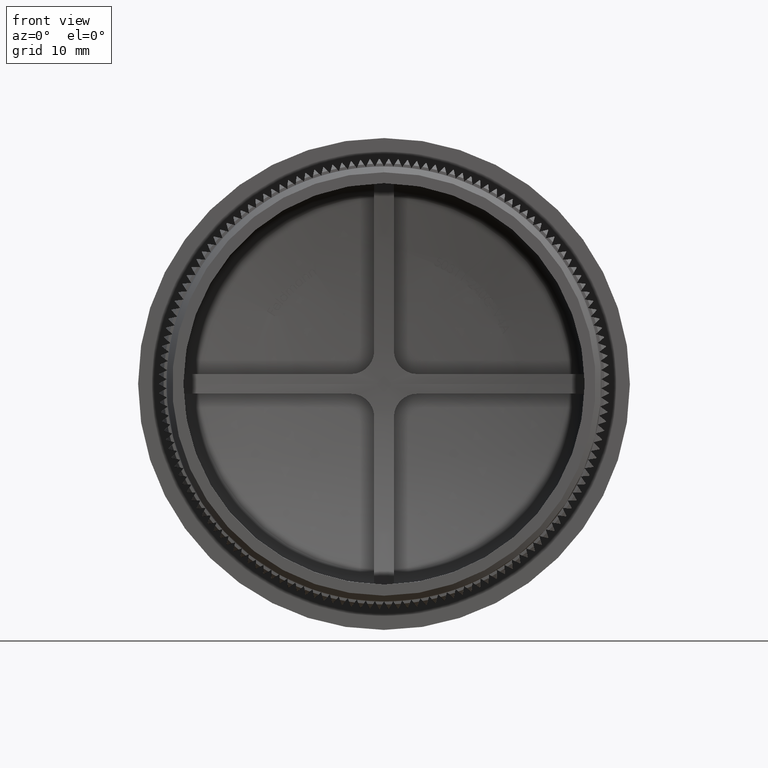
[diagram: clean part render]
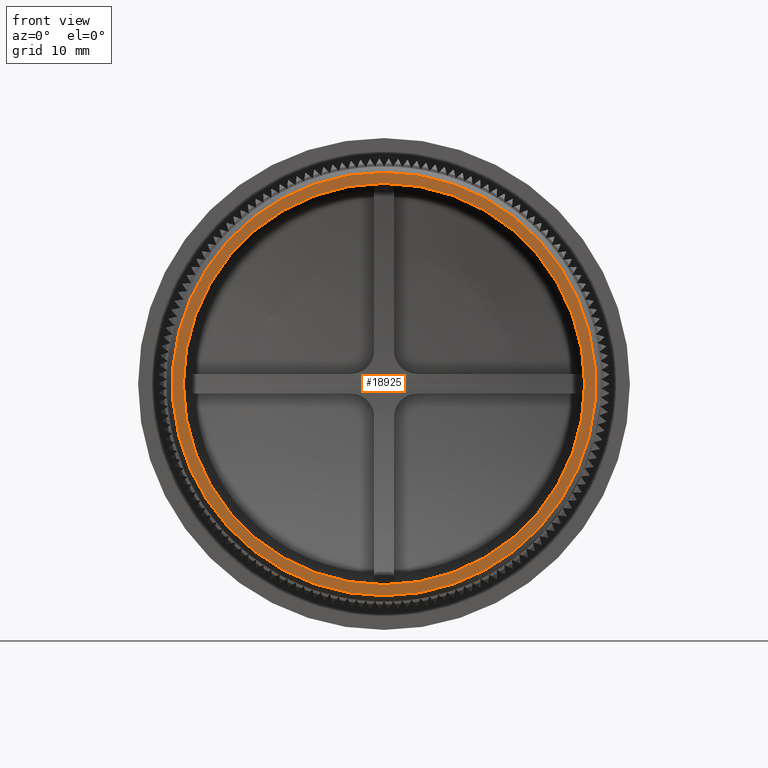
[diagram: same view with one face highlighted and labeled with its STEP entity id]
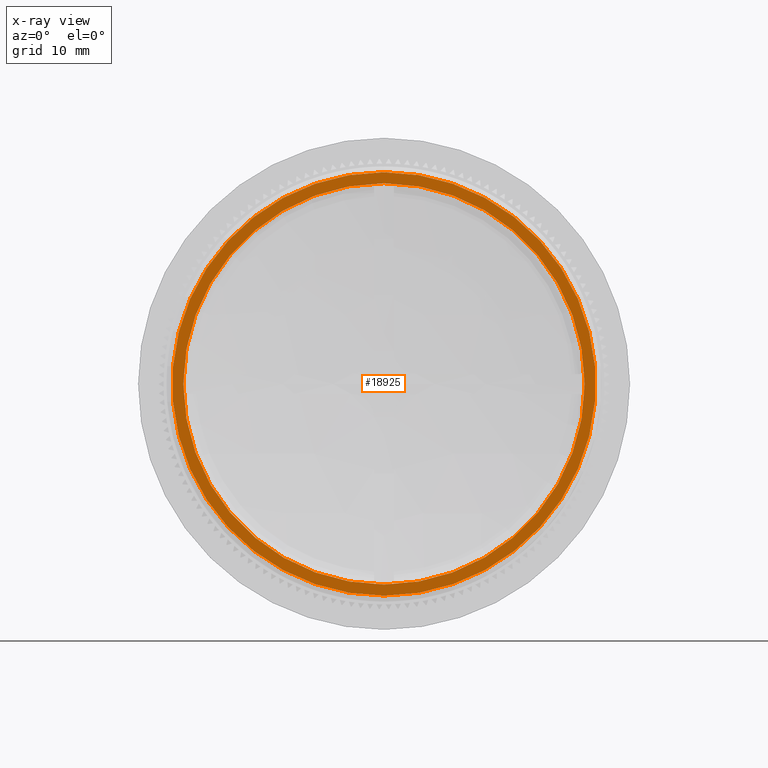
[diagram: x-ray of the same camera — body ghosted, the highlighted face saturated]
A machine part, front view. The second image highlights one B-rep face of the part: STEP entity #18925.
The next image is the same camera in x-ray: the body ghosted, the highlighted face saturated — about 0% of this face is hidden behind the body in this view.
In plain terms, the highlighted planar face has unit normal (0, -1, -0).
Its self-contained STEP definition (entity closure, byte-faithful):
#38 = ORIENTED_EDGE ( 'NONE', *, *, #5437, .F. ) ;
#264 = FACE_OUTER_BOUND ( 'NONE', #23114, .T. ) ;
#1647 = CIRCLE ( 'NONE', #35241, 17.30000000000000100 ) ;
#3234 = AXIS2_PLACEMENT_3D ( 'NONE', #32918, #12214, #15675 ) ;
#3428 = CARTESIAN_POINT ( 'NONE',  ( 0.0000000000000000000, 0.0000000000000000000, 18.24999999999998900 ) ) ;
#4603 = ORIENTED_EDGE ( 'NONE', *, *, #5358, .T. ) ;
#4652 = AXIS2_PLACEMENT_3D ( 'NONE', #18503, #29569, #6198 ) ;
#5358 = EDGE_CURVE ( 'NONE', #12054, #29857, #14116, .T. ) ;
#5437 = EDGE_CURVE ( 'NONE', #5749, #7110, #1647, .T. ) ;
#5749 = VERTEX_POINT ( 'NONE', #28365 ) ;
#6198 = DIRECTION ( 'NONE',  ( 0.0000000000000000000, 0.0000000000000000000, -1.000000000000000000 ) ) ;
#6914 = AXIS2_PLACEMENT_3D ( 'NONE', #19746, #36873, #26906 ) ;
#7110 = VERTEX_POINT ( 'NONE', #37988 ) ;
#9110 = AXIS2_PLACEMENT_3D ( 'NONE', #26113, #25517, #19279 ) ;
#12054 = VERTEX_POINT ( 'NONE', #3428 ) ;
#12214 = DIRECTION ( 'NONE',  ( 0.0000000000000000000, -1.000000000000000000, -0.0000000000000000000 ) ) ;
#13572 = EDGE_LOOP ( 'NONE', ( #38, #41578 ) ) ;
#14116 = CIRCLE ( 'NONE', #9110, 18.24999999999998900 ) ;
#15675 = DIRECTION ( 'NONE',  ( 0.0000000000000000000, 0.0000000000000000000, -1.000000000000000000 ) ) ;
#17025 = EDGE_CURVE ( 'NONE', #7110, #5749, #19265, .T. ) ;
#18503 = CARTESIAN_POINT ( 'NONE',  ( 0.0000000000000000000, 0.0000000000000000000, 0.0000000000000000000 ) ) ;
#18925 = ADVANCED_FACE ( 'NONE', ( #23502, #264 ), #43159, .T. ) ;
#19265 = CIRCLE ( 'NONE', #6914, 17.30000000000000100 ) ;
#19279 = DIRECTION ( 'NONE',  ( 0.0000000000000000000, 0.0000000000000000000, -1.000000000000000000 ) ) ;
#19430 = DIRECTION ( 'NONE',  ( -0.0000000000000000000, -1.000000000000000000, -0.0000000000000000000 ) ) ;
#19746 = CARTESIAN_POINT ( 'NONE',  ( 0.0000000000000000000, 0.0000000000000000000, 0.0000000000000000000 ) ) ;
#23114 = EDGE_LOOP ( 'NONE', ( #4603, #39854 ) ) ;
#23378 = CARTESIAN_POINT ( 'NONE',  ( 0.0000000000000000000, 0.0000000000000000000, 0.0000000000000000000 ) ) ;
#23502 = FACE_BOUND ( 'NONE', #13572, .T. ) ;
#25517 = DIRECTION ( 'NONE',  ( -0.0000000000000000000, -1.000000000000000000, -0.0000000000000000000 ) ) ;
#26113 = CARTESIAN_POINT ( 'NONE',  ( 0.0000000000000000000, 0.0000000000000000000, 0.0000000000000000000 ) ) ;
#26906 = DIRECTION ( 'NONE',  ( 0.0000000000000000000, 0.0000000000000000000, -1.000000000000000000 ) ) ;
#28365 = CARTESIAN_POINT ( 'NONE',  ( 0.0000000000000000000, 0.0000000000000000000, -17.30000000000000100 ) ) ;
#29569 = DIRECTION ( 'NONE',  ( -0.0000000000000000000, -1.000000000000000000, -0.0000000000000000000 ) ) ;
#29857 = VERTEX_POINT ( 'NONE', #39300 ) ;
#30442 = EDGE_CURVE ( 'NONE', #29857, #12054, #32364, .T. ) ;
#32364 = CIRCLE ( 'NONE', #4652, 18.24999999999998900 ) ;
#32918 = CARTESIAN_POINT ( 'NONE',  ( 18.75000000000000000, 0.0000000000000000000, 0.0000000000000000000 ) ) ;
#35241 = AXIS2_PLACEMENT_3D ( 'NONE', #23378, #19430, #40455 ) ;
#36873 = DIRECTION ( 'NONE',  ( -0.0000000000000000000, -1.000000000000000000, -0.0000000000000000000 ) ) ;
#37988 = CARTESIAN_POINT ( 'NONE',  ( 2.118638962524921100E-015, 0.0000000000000000000, 17.30000000000000100 ) ) ;
#39300 = CARTESIAN_POINT ( 'NONE',  ( 2.265596578422602600E-015, 0.0000000000000000000, -18.24999999999998900 ) ) ;
#39854 = ORIENTED_EDGE ( 'NONE', *, *, #30442, .T. ) ;
#40455 = DIRECTION ( 'NONE',  ( 0.0000000000000000000, 0.0000000000000000000, -1.000000000000000000 ) ) ;
#41578 = ORIENTED_EDGE ( 'NONE', *, *, #17025, .F. ) ;
#43159 = PLANE ( 'NONE',  #3234 ) ;